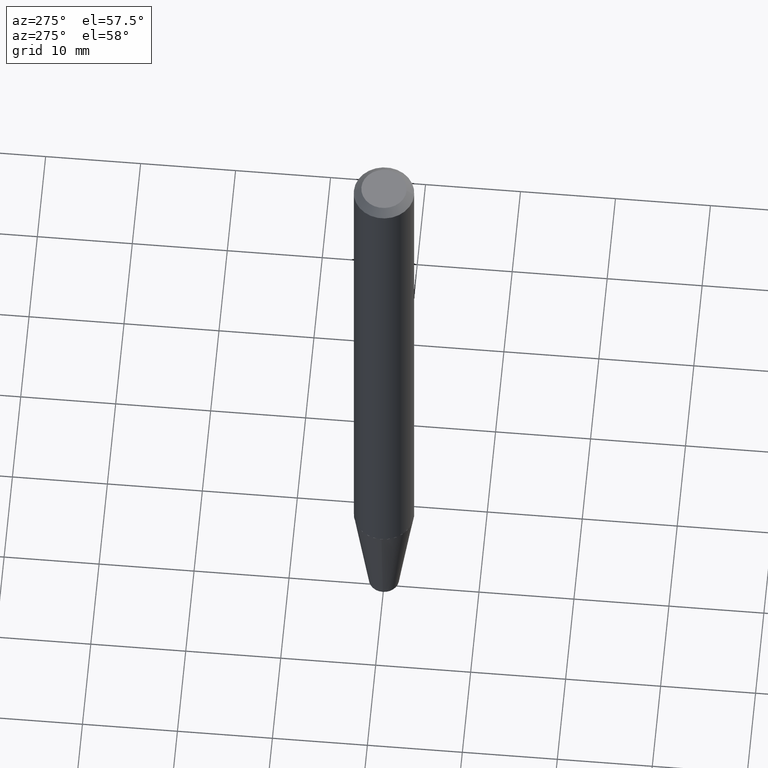
[diagram: clean part render]
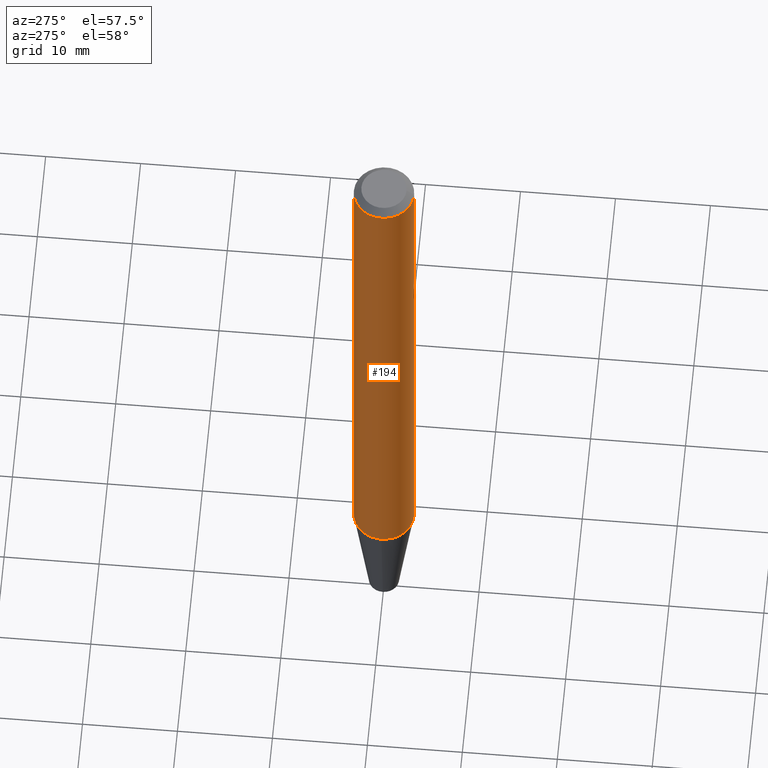
[diagram: same view with one face highlighted and labeled with its STEP entity id]
A machine part, auxiliary view. The second image highlights one B-rep face of the part: STEP entity #194.
In plain terms, the highlighted cylindrical surface (edge-blend (fillet) strip) has radius 3.175 mm, axis along (-0, 0, 1).
Its self-contained STEP definition (entity closure, byte-faithful):
#10 = EDGE_CURVE ( 'NONE', #288, #130, #156, .T. ) ;
#11 = CYLINDRICAL_SURFACE ( 'NONE', #125, 0.1250000000000001388 ) ;
#19 = CARTESIAN_POINT ( 'NONE',  ( 6.239012973379943881E-29, -8.532594740894794677E-15, -2.497624487762148515 ) ) ;
#21 = DIRECTION ( 'NONE',  ( -2.634027352174644094E-29, 3.221454768900221643E-15, 1.000000000000000000 ) ) ;
#24 = AXIS2_PLACEMENT_3D ( 'NONE', #185, #357, #324 ) ;
#36 = VECTOR ( 'NONE', #409, 39.37007874015748143 ) ;
#50 = CARTESIAN_POINT ( 'NONE',  ( -8.575622497214472631E-16, -0.1250000000000010825, -0.03124999999999965306 ) ) ;
#57 = AXIS2_PLACEMENT_3D ( 'NONE', #19, #171, #331 ) ;
#60 = CARTESIAN_POINT ( 'NONE',  ( 8.728703347107841277E-16, 0.1249999999999999167, -0.03125000000000045797 ) ) ;
#84 = ORIENTED_EDGE ( 'NONE', *, *, #275, .F. ) ;
#125 = AXIS2_PLACEMENT_3D ( 'NONE', #227, #197, #362 ) ;
#130 = VERTEX_POINT ( 'NONE', #50 ) ;
#134 = ORIENTED_EDGE ( 'NONE', *, *, #10, .F. ) ;
#143 = EDGE_CURVE ( 'NONE', #297, #130, #237, .T. ) ;
#156 = CIRCLE ( 'NONE', #24, 0.1250000000000004996 ) ;
#171 = DIRECTION ( 'NONE',  ( -2.634027352174644094E-29, 3.221454768900221643E-15, 1.000000000000000000 ) ) ;
#185 = CARTESIAN_POINT ( 'NONE',  ( -2.574848880912829663E-30, -5.872808853995789416E-16, -0.03125000000000005551 ) ) ;
#194 = ADVANCED_FACE ( 'NONE', ( #366 ), #11, .T. ) ;
#197 = DIRECTION ( 'NONE',  ( -2.634027352174644094E-29, 3.221454768900221643E-15, 1.000000000000000000 ) ) ;
#214 = CARTESIAN_POINT ( 'NONE',  ( 8.881784197001227671E-16, 0.1249999999999996808, -3.835579915796902468E-16 ) ) ;
#216 = CIRCLE ( 'NONE', #57, 0.1249999999999997918 ) ;
#219 = ORIENTED_EDGE ( 'NONE', *, *, #143, .T. ) ;
#220 = EDGE_CURVE ( 'NONE', #291, #297, #216, .T. ) ;
#227 = CARTESIAN_POINT ( 'NONE',  ( -3.397982428467408395E-30, -4.866104238714468673E-16, 1.912385453283800096E-17 ) ) ;
#230 = CARTESIAN_POINT ( 'NONE',  ( -8.728703347107876776E-16, -0.1250000000000006384, 4.218057006453661994E-16 ) ) ;
#237 = LINE ( 'NONE', #230, #341 ) ;
#262 = ORIENTED_EDGE ( 'NONE', *, *, #220, .T. ) ;
#272 = CARTESIAN_POINT ( 'NONE',  ( 8.881784197001548146E-16, 0.1249999999999912570, -2.497624487762148959 ) ) ;
#275 = EDGE_CURVE ( 'NONE', #291, #288, #276, .T. ) ;
#276 = LINE ( 'NONE', #214, #36 ) ;
#288 = VERTEX_POINT ( 'NONE', #60 ) ;
#291 = VERTEX_POINT ( 'NONE', #272 ) ;
#297 = VERTEX_POINT ( 'NONE', #411 ) ;
#306 = EDGE_LOOP ( 'NONE', ( #84, #262, #219, #134 ) ) ;
#324 = DIRECTION ( 'NONE',  ( -6.982962677686266711E-15, -1.000000000000000000, 3.209921392555496413E-15 ) ) ;
#331 = DIRECTION ( 'NONE',  ( -6.982962677686265922E-15, -1.000000000000000000, 4.370956789862828249E-15 ) ) ;
#341 = VECTOR ( 'NONE', #21, 39.37007874015748143 ) ;
#357 = DIRECTION ( 'NONE',  ( -2.634027352174644094E-29, 3.221454768900221643E-15, 1.000000000000000000 ) ) ;
#362 = DIRECTION ( 'NONE',  ( -6.982962677686266711E-15, -1.000000000000000000, 3.221454768900222038E-15 ) ) ;
#366 = FACE_OUTER_BOUND ( 'NONE', #306, .T. ) ;
#409 = DIRECTION ( 'NONE',  ( -2.634027352174644094E-29, 3.221454768900221643E-15, 1.000000000000000000 ) ) ;
#411 = CARTESIAN_POINT ( 'NONE',  ( -8.728703347107194411E-16, -0.1250000000000083267, -2.497624487762148071 ) ) ;